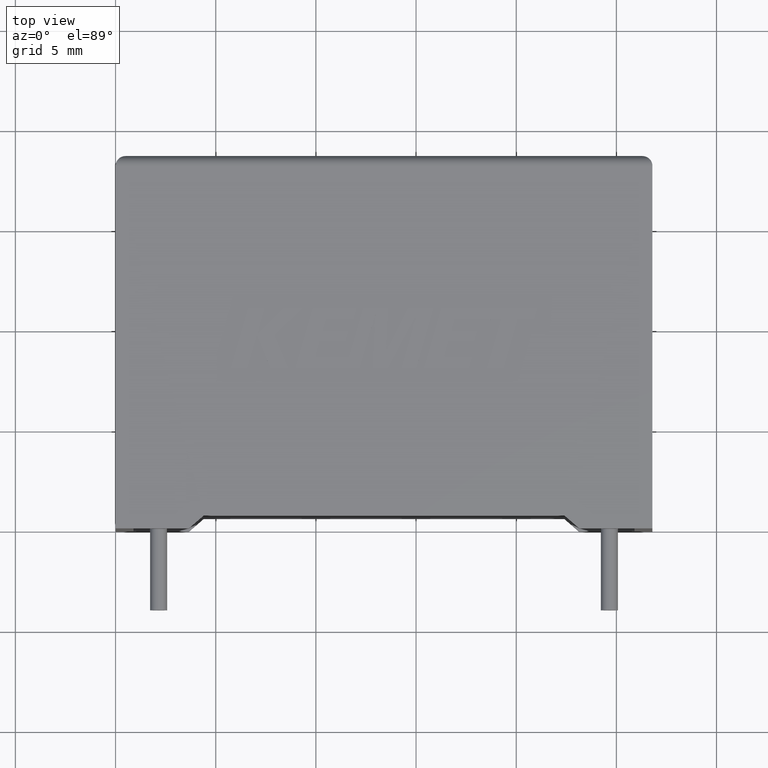
[diagram: clean part render]
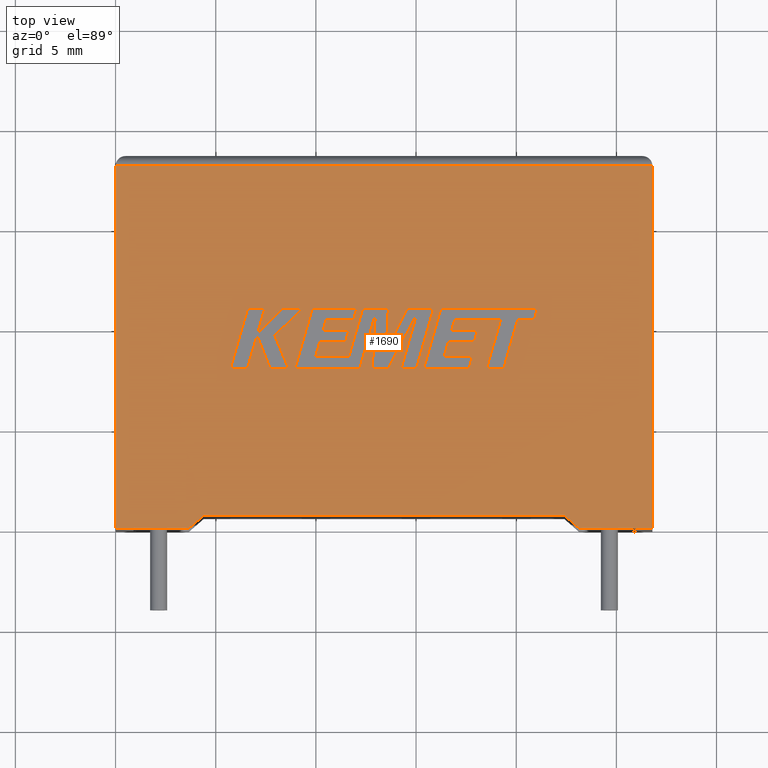
[diagram: same view with one face highlighted and labeled with its STEP entity id]
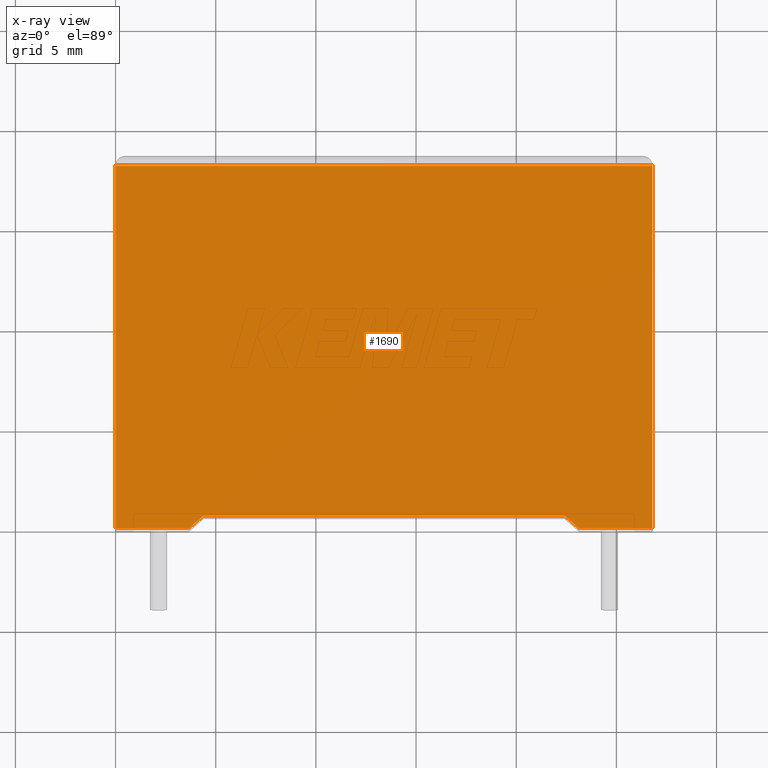
[diagram: x-ray of the same camera — body ghosted, the highlighted face saturated]
A machine part, top view. The second image highlights one B-rep face of the part: STEP entity #1690.
The next image is the same camera in x-ray: the body ghosted, the highlighted face saturated — about 0% of this face is hidden behind the body in this view.
In plain terms, the highlighted planar face has unit normal (0, 0, -1).
Its self-contained STEP definition (entity closure, byte-faithful):
#9 = LINE ( 'NONE', #1431, #2153 ) ;
#89 = CARTESIAN_POINT ( 'NONE',  ( 13.40000000000000036, 0.6413280000000008974, 10.19999999999999929 ) ) ;
#95 = CARTESIAN_POINT ( 'NONE',  ( 4.394236000000001141, 0.6413279999999997871, 10.19999999999999929 ) ) ;
#118 = VECTOR ( 'NONE', #2701, 1000.000000000000000 ) ;
#136 = EDGE_CURVE ( 'NONE', #1116, #528, #9, .T. ) ;
#259 = LINE ( 'NONE', #2164, #2838 ) ;
#292 = ORIENTED_EDGE ( 'NONE', *, *, #1610, .T. ) ;
#295 = ORIENTED_EDGE ( 'NONE', *, *, #685, .F. ) ;
#413 = LINE ( 'NONE', #591, #844 ) ;
#473 = LINE ( 'NONE', #2629, #1895 ) ;
#516 = ORIENTED_EDGE ( 'NONE', *, *, #136, .T. ) ;
#528 = VERTEX_POINT ( 'NONE', #968 ) ;
#559 = LINE ( 'NONE', #986, #1788 ) ;
#591 = CARTESIAN_POINT ( 'NONE',  ( 3.650000000000001243, 2.234980408443919708E-16, 10.19999999999999929 ) ) ;
#646 = LINE ( 'NONE', #1165, #1592 ) ;
#685 = EDGE_CURVE ( 'NONE', #2918, #2911, #2225, .T. ) ;
#687 = CARTESIAN_POINT ( 'NONE',  ( 26.80000000000000071, 18.10000000000000142, 10.19999999999999929 ) ) ;
#778 = VERTEX_POINT ( 'NONE', #1615 ) ;
#819 = CARTESIAN_POINT ( 'NONE',  ( 22.40576400000000135, 0.6413279999999997871, 10.19999999999999929 ) ) ;
#844 = VECTOR ( 'NONE', #2744, 1000.000000000000000 ) ;
#924 = CARTESIAN_POINT ( 'NONE',  ( 0.000000000000000000, 0.000000000000000000, 10.19999999999999929 ) ) ;
#968 = CARTESIAN_POINT ( 'NONE',  ( 0.000000000000000000, 18.10000000000000142, 10.19999999999999929 ) ) ;
#969 = DIRECTION ( 'NONE',  ( -0.000000000000000000, -1.000000000000000000, -0.000000000000000000 ) ) ;
#972 = DIRECTION ( 'NONE',  ( 0.000000000000000000, 1.000000000000000000, 0.000000000000000000 ) ) ;
#986 = CARTESIAN_POINT ( 'NONE',  ( 0.000000000000000000, 0.000000000000000000, 10.19999999999999929 ) ) ;
#1024 = EDGE_CURVE ( 'NONE', #2911, #778, #413, .T. ) ;
#1034 = ORIENTED_EDGE ( 'NONE', *, *, #1024, .F. ) ;
#1045 = VERTEX_POINT ( 'NONE', #2044 ) ;
#1116 = VERTEX_POINT ( 'NONE', #687 ) ;
#1165 = CARTESIAN_POINT ( 'NONE',  ( 23.15000000000000213, 2.234980408443919708E-16, 10.19999999999999929 ) ) ;
#1285 = ORIENTED_EDGE ( 'NONE', *, *, #2022, .T. ) ;
#1294 = DIRECTION ( 'NONE',  ( -1.000000000000000000, 0.000000000000000000, -0.000000000000000000 ) ) ;
#1322 = EDGE_CURVE ( 'NONE', #2655, #778, #559, .T. ) ;
#1387 = VECTOR ( 'NONE', #2619, 1000.000000000000000 ) ;
#1415 = ORIENTED_EDGE ( 'NONE', *, *, #1980, .T. ) ;
#1431 = CARTESIAN_POINT ( 'NONE',  ( 0.000000000000000000, 18.10000000000000142, 10.19999999999999929 ) ) ;
#1499 = CARTESIAN_POINT ( 'NONE',  ( 0.000000000000000000, 0.000000000000000000, 10.19999999999999929 ) ) ;
#1513 = PLANE ( 'NONE',  #1526 ) ;
#1526 = AXIS2_PLACEMENT_3D ( 'NONE', #1499, #2457, #1294 ) ;
#1592 = VECTOR ( 'NONE', #2554, 1000.000000000000000 ) ;
#1610 = EDGE_CURVE ( 'NONE', #528, #2655, #259, .T. ) ;
#1615 = CARTESIAN_POINT ( 'NONE',  ( 3.650000000000001243, 2.234980408443919708E-16, 10.19999999999999929 ) ) ;
#1690 = ADVANCED_FACE ( 'NONE', ( #2502 ), #1513, .F. ) ;
#1788 = VECTOR ( 'NONE', #2468, 1000.000000000000000 ) ;
#1798 = VERTEX_POINT ( 'NONE', #2976 ) ;
#1872 = EDGE_LOOP ( 'NONE', ( #1285, #516, #292, #2588, #1034, #295, #2664, #1415 ) ) ;
#1895 = VECTOR ( 'NONE', #972, 1000.000000000000000 ) ;
#1896 = LINE ( 'NONE', #1942, #1387 ) ;
#1930 = DIRECTION ( 'NONE',  ( -1.000000000000000000, 0.000000000000000000, 0.000000000000000000 ) ) ;
#1942 = CARTESIAN_POINT ( 'NONE',  ( 0.000000000000000000, 0.000000000000000000, 10.19999999999999929 ) ) ;
#1980 = EDGE_CURVE ( 'NONE', #1045, #1798, #1896, .T. ) ;
#2022 = EDGE_CURVE ( 'NONE', #1798, #1116, #473, .T. ) ;
#2044 = CARTESIAN_POINT ( 'NONE',  ( 23.15000000000000213, 2.234980408443919708E-16, 10.19999999999999929 ) ) ;
#2153 = VECTOR ( 'NONE', #1930, 1000.000000000000000 ) ;
#2164 = CARTESIAN_POINT ( 'NONE',  ( 0.000000000000000000, 0.000000000000000000, 10.19999999999999929 ) ) ;
#2214 = EDGE_CURVE ( 'NONE', #2918, #1045, #646, .T. ) ;
#2225 = LINE ( 'NONE', #89, #118 ) ;
#2457 = DIRECTION ( 'NONE',  ( 0.000000000000000000, 0.000000000000000000, -1.000000000000000000 ) ) ;
#2468 = DIRECTION ( 'NONE',  ( 1.000000000000000000, 0.000000000000000000, 0.000000000000000000 ) ) ;
#2502 = FACE_OUTER_BOUND ( 'NONE', #1872, .T. ) ;
#2554 = DIRECTION ( 'NONE',  ( 0.7575381879583814593, -0.6527908499548166210, -0.000000000000000000 ) ) ;
#2588 = ORIENTED_EDGE ( 'NONE', *, *, #1322, .T. ) ;
#2619 = DIRECTION ( 'NONE',  ( 1.000000000000000000, 0.000000000000000000, 0.000000000000000000 ) ) ;
#2629 = CARTESIAN_POINT ( 'NONE',  ( 26.80000000000000071, 0.000000000000000000, 10.19999999999999929 ) ) ;
#2655 = VERTEX_POINT ( 'NONE', #924 ) ;
#2664 = ORIENTED_EDGE ( 'NONE', *, *, #2214, .T. ) ;
#2701 = DIRECTION ( 'NONE',  ( -1.000000000000000000, -1.203898050721187540E-16, 0.000000000000000000 ) ) ;
#2744 = DIRECTION ( 'NONE',  ( -0.7575381879583814593, -0.6527908499548166210, -0.000000000000000000 ) ) ;
#2838 = VECTOR ( 'NONE', #969, 1000.000000000000000 ) ;
#2911 = VERTEX_POINT ( 'NONE', #95 ) ;
#2918 = VERTEX_POINT ( 'NONE', #819 ) ;
#2976 = CARTESIAN_POINT ( 'NONE',  ( 26.80000000000000071, 0.000000000000000000, 10.19999999999999929 ) ) ;